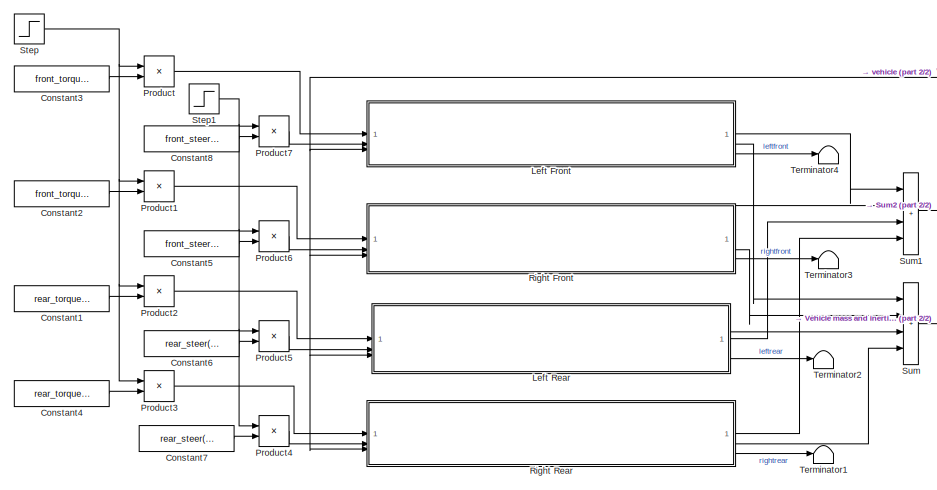
[diagram: root canvas - part 1/2, left side, full height]
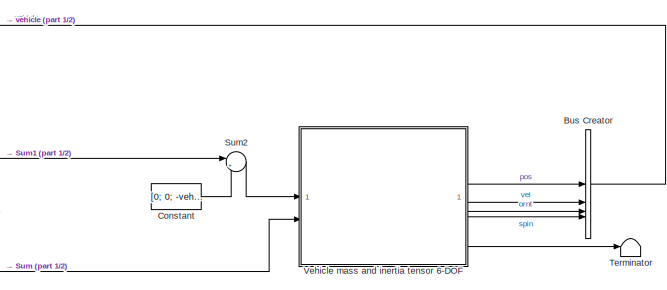
[diagram: root canvas - part 2/2, middle right region]
MODEL slx_c694687a10d5
KIND model
CONFIG AbsTol = auto
CONFIG EnableMultiTasking = off
CONFIG FixedStep = 1e-4
CONFIG MaxStep = auto
CONFIG MinStep = auto
CONFIG RelTol = 1e-8
CONFIG SampleTimeConstraint = Unconstrained
CONFIG SolverName = ode15s
CONFIG StartTime = 0.0
CONFIG StopTime = t_f
BLOCK [BusCreator] Bus Creator
  DisplayOption = bar
  InheritFromInputs = on
  Inputs = 4
BLOCK [Constant] Constant
  Value = [0; 0; -vehicle_mass*grav]
BLOCK [Constant] Constant1
  Value = rear_torque(1)
BLOCK [Constant] Constant2
  Value = front_torque(2)
BLOCK [Constant] Constant3
  Value = front_torque(1)
BLOCK [Constant] Constant4
  Value = rear_torque(2)
BLOCK [Constant] Constant5
  Value = front_steer(2)
BLOCK [Constant] Constant6
  Value = rear_steer(1)
BLOCK [Constant] Constant7
  Value = rear_steer(2)
BLOCK [Constant] Constant8
  Value = front_steer(1)
BLOCK [SubSystem] Left Front
  C_a = NaN
  C_i = NaN
  ReferencedSubsystem = quarter_car
  damp_rate = front_damping
  initial_spin = wheel_spin_0
  min_velocity = min_velocity
  offset = patch_leftfront
  radius = wheel_radius
  ride_rate = front_stiffness
  spin_inertia = wheel_inertia
BLOCK [SubSystem] Left Rear
  C_a = NaN
  C_i = NaN
  ReferencedSubsystem = quarter_car
  damp_rate = rear_damping
  initial_spin = wheel_spin_0
  min_velocity = 1e-3
  offset = patch_leftrear
  radius = wheel_radius
  ride_rate = rear_stiffness
  spin_inertia = wheel_inertia
BLOCK [Product] Product
BLOCK [Product] Product1
BLOCK [Product] Product2
BLOCK [Product] Product3
BLOCK [Product] Product4
BLOCK [Product] Product5
BLOCK [Product] Product6
BLOCK [Product] Product7
BLOCK [SubSystem] Right Front
  C_a = NaN
  C_i = NaN
  ReferencedSubsystem = quarter_car
  damp_rate = front_damping
  initial_spin = wheel_spin_0
  min_velocity = 1e-3
  offset = patch_rightfront
  radius = wheel_radius
  ride_rate = front_stiffness
  spin_inertia = wheel_inertia
BLOCK [SubSystem] Right Rear
  C_a = NaN
  C_i = NaN
  ReferencedSubsystem = quarter_car
  damp_rate = rear_damping
  initial_spin = wheel_spin_0
  min_velocity = 1e-3
  offset = patch_rightrear
  radius = wheel_radius
  ride_rate = rear_stiffness
  spin_inertia = wheel_inertia
BLOCK [Step] Step
  SampleTime = 0
  Time = torque_time
BLOCK [Step] Step1
  SampleTime = 0
  Time = steer_time
BLOCK [Sum] Sum
  IconShape = rectangular
  Inputs = ++++
BLOCK [Sum] Sum1
  IconShape = rectangular
  Inputs = ++++
BLOCK [Sum] Sum2
  Inputs = |++
BLOCK [Terminator] Terminator
BLOCK [Terminator] Terminator1
BLOCK [Terminator] Terminator2
BLOCK [Terminator] Terminator3
BLOCK [Terminator] Terminator4
BLOCK [SubSystem] Vehicle mass and inertia tensor 6-DOF
  ReferencedSubsystem = rigid_body_sixdof
  inertia = vehicle_inertia
  mass = vehicle_mass
  ornt_0 = vehicle_ornt_0
  pos_0 = vehicle_pos_0
  spin_0 = vehicle_spin_0
  vel_0 = vehicle_vel_0
NET Bus Creator:1 -> Left Front:3, Left Rear:3, Right Front:3, Right Rear:3
LINE Constant1:1 -> Product2:2
LINE Constant2:1 -> Product1:2
LINE Constant3:1 -> Product:2
LINE Constant4:1 -> Product3:2
LINE Constant5:1 -> Product6:2
LINE Constant6:1 -> Product5:2
LINE Constant7:1 -> Product4:2
LINE Constant8:1 -> Product7:2
LINE Constant:1 -> Sum2:2
LINE Left Front:1 -> Sum1:1
LINE Left Front:2 -> Sum:1
LINE Left Front:3 -> Terminator4:1
LINE Left Rear:1 -> Sum1:3
LINE Left Rear:2 -> Sum:3
LINE Left Rear:3 -> Terminator2:1
LINE Product1:1 -> Right Front:1
LINE Product2:1 -> Left Rear:1
LINE Product3:1 -> Right Rear:1
LINE Product4:1 -> Right Rear:2
LINE Product5:1 -> Left Rear:2
LINE Product6:1 -> Right Front:2
LINE Product7:1 -> Left Front:2
LINE Product:1 -> Left Front:1
LINE Right Front:1 -> Sum1:2
LINE Right Front:2 -> Sum:2
LINE Right Front:3 -> Terminator3:1
LINE Right Rear:1 -> Sum1:4
LINE Right Rear:2 -> Sum:4
LINE Right Rear:3 -> Terminator1:1
NET Step1:1 -> Product4:1, Product5:1, Product6:1, Product7:1
NET Step:1 -> Product1:1, Product2:1, Product3:1, Product:1
LINE Sum1:1 -> Sum2:1
LINE Sum2:1 -> Vehicle mass and inertia tensor 6-DOF:1
LINE Sum:1 -> Vehicle mass and inertia tensor 6-DOF:2
LINE Vehicle mass and inertia tensor 6-DOF:1 -> Bus Creator:1
LINE Vehicle mass and inertia tensor 6-DOF:2 -> Bus Creator:2
LINE Vehicle mass and inertia tensor 6-DOF:3 -> Bus Creator:3
LINE Vehicle mass and inertia tensor 6-DOF:4 -> Bus Creator:4
LINE Vehicle mass and inertia tensor 6-DOF:5 -> Terminator:1
note: NET lines group one-source signal fan-out (src -> all destinations, sorted); 1:1 wires keep LINE
